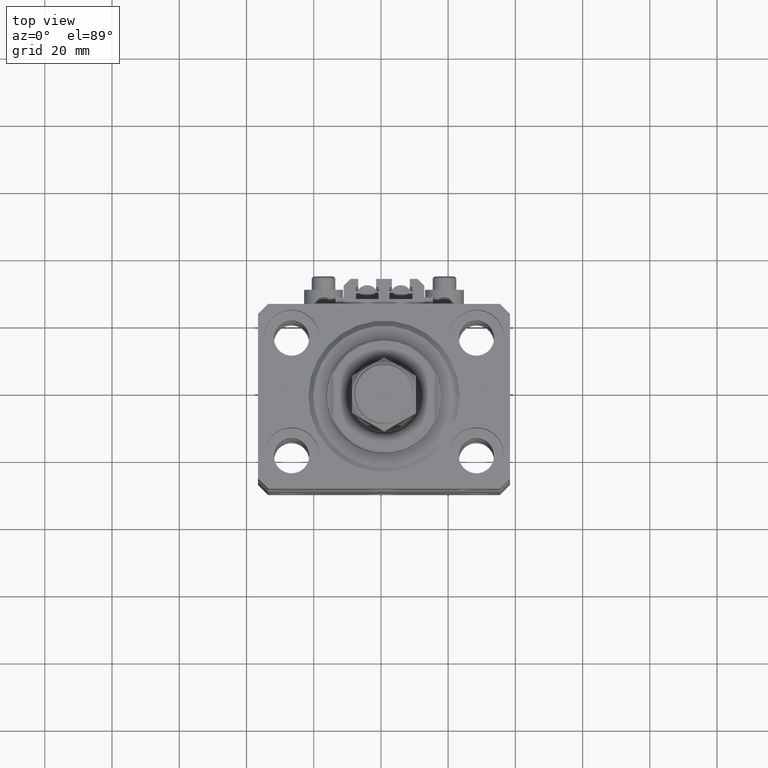
[diagram: clean part render]
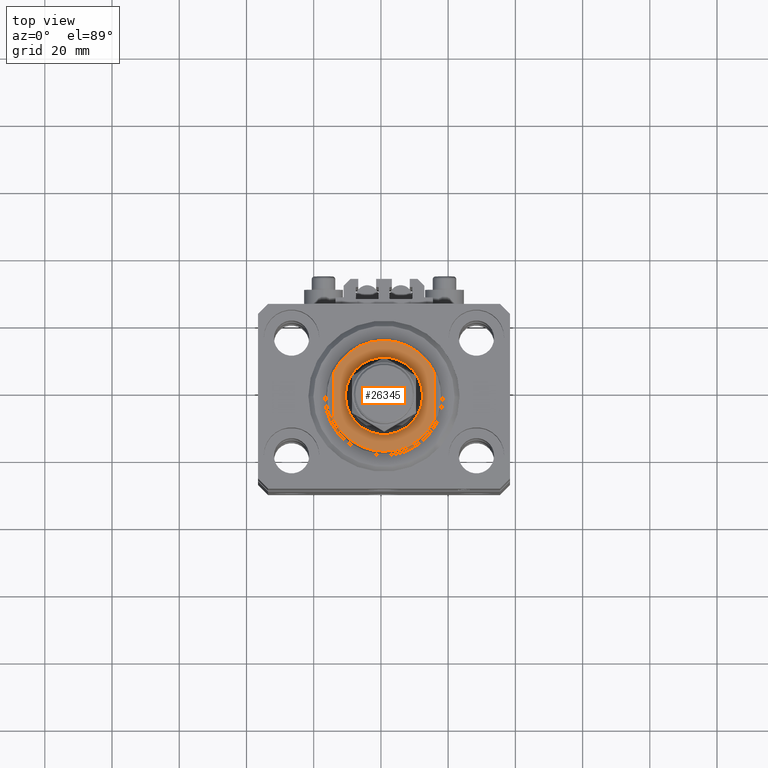
[diagram: same view with one face highlighted and labeled with its STEP entity id]
A machine part, top view. The second image highlights one B-rep face of the part: STEP entity #26345.
In plain terms, the highlighted planar face has unit normal (0, 0, 1).
Its self-contained STEP definition (entity closure, byte-faithful):
#2805 = DIRECTION ( 'NONE',  ( -0.000000000000000000, -1.000000000000000000, -0.000000000000000000 ) ) ;
#4223 = ORIENTED_EDGE ( 'NONE', *, *, #33548, .T. ) ;
#5378 = CIRCLE ( 'NONE', #24682, 16.50000000000000000 ) ;
#5885 = CIRCLE ( 'NONE', #28386, 16.50000000000000000 ) ;
#6210 = VERTEX_POINT ( 'NONE', #41143 ) ;
#7407 = DIRECTION ( 'NONE',  ( 0.000000000000000000, 0.000000000000000000, -1.000000000000000000 ) ) ;
#9350 = EDGE_LOOP ( 'NONE', ( #36157, #21097 ) ) ;
#9489 = CARTESIAN_POINT ( 'NONE',  ( 0.000000000000000000, 0.000000000000000000, -8.000000000000000000 ) ) ;
#9847 = LINE ( 'NONE', #43635, #42481 ) ;
#10672 = FACE_BOUND ( 'NONE', #9350, .T. ) ;
#10701 = VERTEX_POINT ( 'NONE', #28115 ) ;
#11241 = DIRECTION ( 'NONE',  ( -1.000000000000000000, 0.000000000000000000, 0.000000000000000000 ) ) ;
#11492 = CARTESIAN_POINT ( 'NONE',  ( 0.000000000000000000, 0.000000000000000000, -8.000000000000000000 ) ) ;
#12336 = EDGE_LOOP ( 'NONE', ( #4223, #13764, #35108, #19317 ) ) ;
#13204 = CARTESIAN_POINT ( 'NONE',  ( -11.50000000000000355, 0.000000000000000000, -8.000000000000000000 ) ) ;
#13764 = ORIENTED_EDGE ( 'NONE', *, *, #36074, .T. ) ;
#14855 = AXIS2_PLACEMENT_3D ( 'NONE', #14949, #34106, #37890 ) ;
#14949 = CARTESIAN_POINT ( 'NONE',  ( 0.000000000000000000, 0.000000000000000000, -8.000000000000000000 ) ) ;
#15848 = EDGE_CURVE ( 'NONE', #33204, #6210, #5885, .T. ) ;
#18743 = CARTESIAN_POINT ( 'NONE',  ( 0.000000000000000000, 0.000000000000000000, -8.000000000000000000 ) ) ;
#18982 = DIRECTION ( 'NONE',  ( -1.000000000000000000, 0.000000000000000000, 0.000000000000000000 ) ) ;
#19317 = ORIENTED_EDGE ( 'NONE', *, *, #32403, .F. ) ;
#21097 = ORIENTED_EDGE ( 'NONE', *, *, #25964, .T. ) ;
#24458 = DIRECTION ( 'NONE',  ( 0.000000000000000000, -1.000000000000000000, -0.000000000000000000 ) ) ;
#24682 = AXIS2_PLACEMENT_3D ( 'NONE', #18743, #41709, #18982 ) ;
#25964 = EDGE_CURVE ( 'NONE', #39835, #37061, #30960, .T. ) ;
#26345 = ADVANCED_FACE ( 'NONE', ( #10672, #48751 ), #29563, .T. ) ;
#27132 = VECTOR ( 'NONE', #2805, 1000.000000000000000 ) ;
#27273 = CIRCLE ( 'NONE', #44201, 11.50000000000000355 ) ;
#28115 = CARTESIAN_POINT ( 'NONE',  ( -14.99999999999999645, 6.873863542433765517, -8.000000000000000000 ) ) ;
#28386 = AXIS2_PLACEMENT_3D ( 'NONE', #48759, #7407, #49745 ) ;
#28631 = DIRECTION ( 'NONE',  ( -1.000000000000000000, 0.000000000000000000, 0.000000000000000000 ) ) ;
#29563 = PLANE ( 'NONE',  #14855 ) ;
#29762 = LINE ( 'NONE', #34303, #27132 ) ;
#30764 = CARTESIAN_POINT ( 'NONE',  ( 11.50000000000000355, 1.408343819019456570E-15, -8.000000000000000000 ) ) ;
#30960 = CIRCLE ( 'NONE', #46261, 11.50000000000000355 ) ;
#32403 = EDGE_CURVE ( 'NONE', #10701, #6210, #29762, .T. ) ;
#33204 = VERTEX_POINT ( 'NONE', #37224 ) ;
#33548 = EDGE_CURVE ( 'NONE', #10701, #37592, #5378, .T. ) ;
#34106 = DIRECTION ( 'NONE',  ( 0.000000000000000000, 0.000000000000000000, -1.000000000000000000 ) ) ;
#34303 = CARTESIAN_POINT ( 'NONE',  ( -15.00000000000000000, -42.42640687119285303, -8.000000000000000000 ) ) ;
#34668 = DIRECTION ( 'NONE',  ( -0.000000000000000000, -0.000000000000000000, 1.000000000000000000 ) ) ;
#35108 = ORIENTED_EDGE ( 'NONE', *, *, #15848, .T. ) ;
#36074 = EDGE_CURVE ( 'NONE', #37592, #33204, #9847, .T. ) ;
#36157 = ORIENTED_EDGE ( 'NONE', *, *, #38849, .T. ) ;
#37061 = VERTEX_POINT ( 'NONE', #13204 ) ;
#37224 = CARTESIAN_POINT ( 'NONE',  ( 14.99999999999999645, -6.873863542433765517, -8.000000000000000000 ) ) ;
#37592 = VERTEX_POINT ( 'NONE', #43102 ) ;
#37890 = DIRECTION ( 'NONE',  ( -1.000000000000000000, 0.000000000000000000, -0.000000000000000000 ) ) ;
#38849 = EDGE_CURVE ( 'NONE', #37061, #39835, #27273, .T. ) ;
#39835 = VERTEX_POINT ( 'NONE', #30764 ) ;
#40753 = DIRECTION ( 'NONE',  ( -0.000000000000000000, -0.000000000000000000, 1.000000000000000000 ) ) ;
#41143 = CARTESIAN_POINT ( 'NONE',  ( -14.99999999999999645, -6.873863542433765517, -8.000000000000000000 ) ) ;
#41709 = DIRECTION ( 'NONE',  ( 0.000000000000000000, 0.000000000000000000, -1.000000000000000000 ) ) ;
#42481 = VECTOR ( 'NONE', #24458, 1000.000000000000000 ) ;
#43102 = CARTESIAN_POINT ( 'NONE',  ( 14.99999999999999645, 6.873863542433765517, -8.000000000000000000 ) ) ;
#43635 = CARTESIAN_POINT ( 'NONE',  ( 15.00000000000000000, -42.42640687119285303, -8.000000000000000000 ) ) ;
#44201 = AXIS2_PLACEMENT_3D ( 'NONE', #11492, #34668, #11241 ) ;
#46261 = AXIS2_PLACEMENT_3D ( 'NONE', #9489, #40753, #28631 ) ;
#48751 = FACE_OUTER_BOUND ( 'NONE', #12336, .T. ) ;
#48759 = CARTESIAN_POINT ( 'NONE',  ( 0.000000000000000000, 0.000000000000000000, -8.000000000000000000 ) ) ;
#49745 = DIRECTION ( 'NONE',  ( -1.000000000000000000, 0.000000000000000000, 0.000000000000000000 ) ) ;